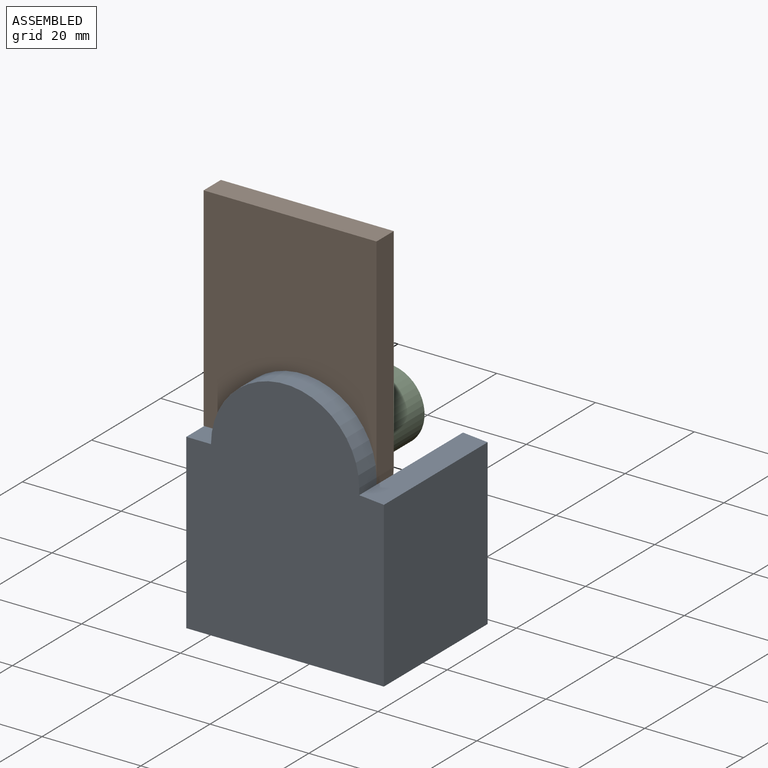
[diagram: assembled view]
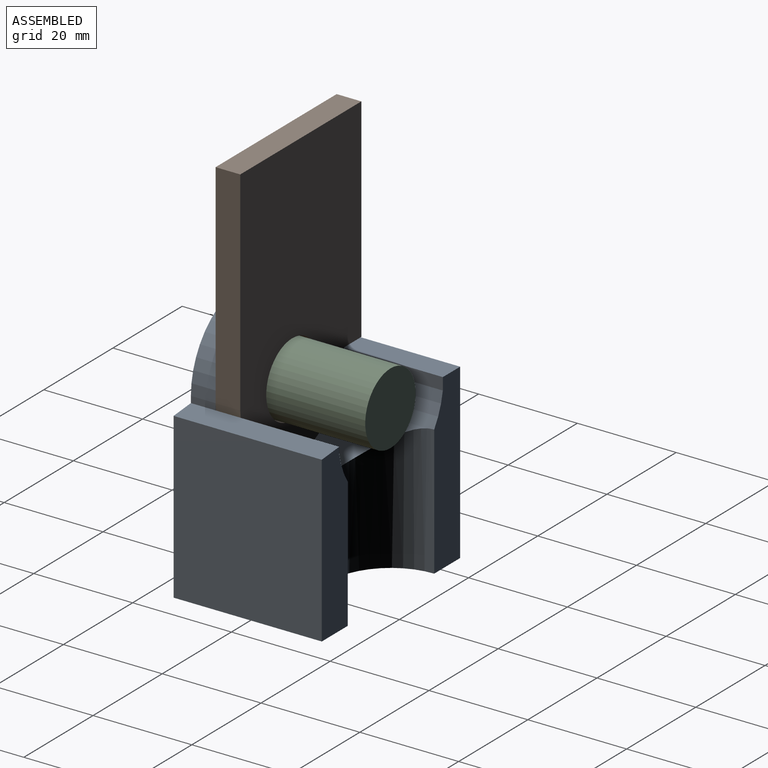
[diagram: assembled view, second angle]
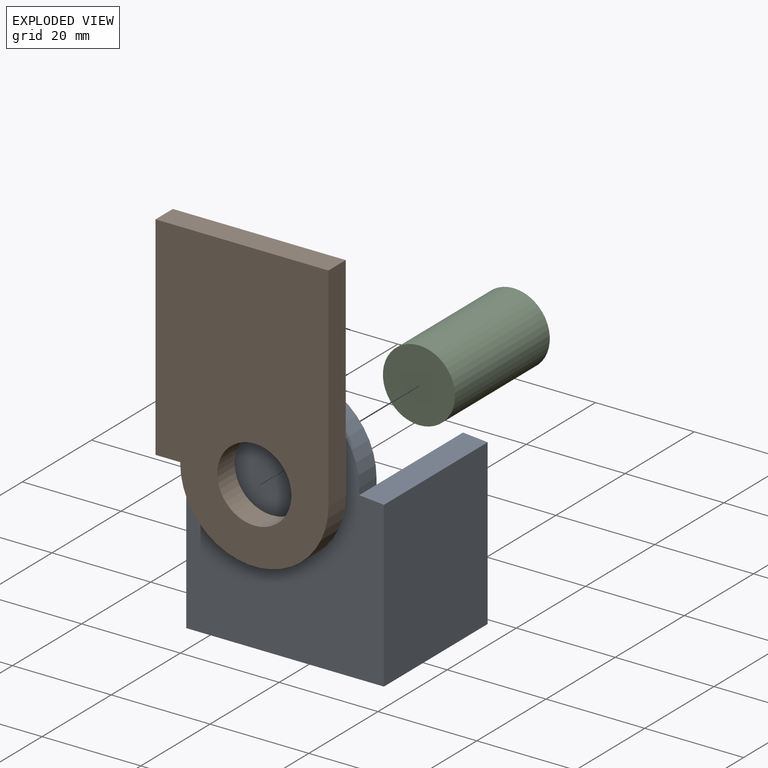
[diagram: exploded view]
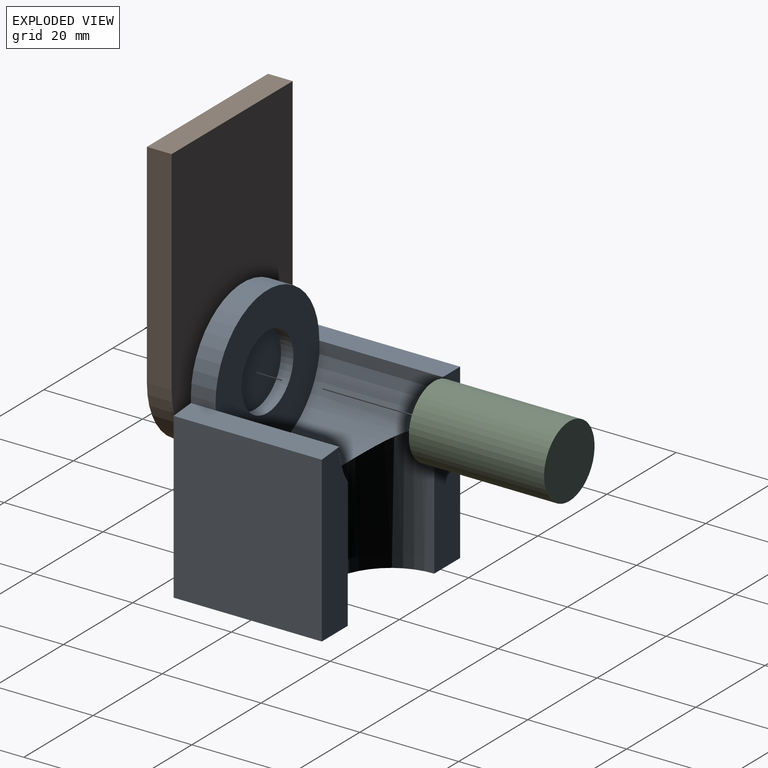
[diagram: exploded view, second angle]
ASSEMBLY  parts=3 mates=2
PART A: 17 faces, bbox 40x30x50 mm
  f0: plane 33.69x7.5mm, normal (0,1,0), area 239.3mm2, adj f1,f8,f10,f11,f12,f16
  f1: cylinder r=15.2mm len=30mm, axis (0,-1,0), area 795.6mm2, adj f0,f2,f3,f5,f10,f16
  f2: plane 25x2.46mm, normal (1,0,0), area 61.4mm2, adj f1,f3,f5,f6
  f3: plane 30.2x30mm, normal (0,1,0), area 539mm2, adj f1,f2,f4,f10,f13,f14
  f4: cylinder r=7.5mm len=15mm, axis (0,-1,0), area 117.8mm2, adj f3,f15
  f5: plane 35x7.5mm, normal (0,1,0), area 247mm2, adj f1,f2,f6,f7,f8,f16
  f6: plane 30x5mm, normal (0,0,1), area 150mm2, adj f2,f5,f7,f9,f14
  f7: plane 35x30mm, normal (-1,0,0), area 1050mm2, adj f5,f6,f8,f9
  f8: plane 40x30mm, normal (0,0,-1), area 954.6mm2, adj f0,f5,f7,f9,f11,f16
  f9: plane 50x40mm, normal (0,-1,0), area 1745.8mm2, adj f6,f7,f8,f11,f12,f13,f14
  f10: plane 25x1.15mm, normal (-1,0,0), area 28.6mm2, adj f0,f1,f3,f12
  f11: plane 33.25x30mm, normal (1,0,0), area 997.5mm2, adj f0,f8,f9,f12
  f12: plane 30x5mm, normal (0.09,0,1), area 150.6mm2, adj f0,f9,f10,f11,f13
  f13: plane 5x1.31mm, normal (1,0,0), area 6.6mm2, adj f3,f9,f12,f14
  f14: cylinder r=15mm len=30mm, axis (0,-1,0), area 235.6mm2, adj f3,f6,f9,f13
  f15: plane 15x15mm, normal (0,1,0), area 176.7mm2, adj f4
  f16: cylinder r=12.5mm len=26.35mm, axis (0,0,-1), area 897.3mm2, adj f0,f1,f5,f8
PART B: 8 faces, bbox 35x5x58.2 mm
  f0: plane 43.18x5mm, normal (1,0,0), area 215.9mm2, adj f1,f4,f6,f7
  f1: cylinder r=15mm len=30mm, axis (0,-1,0), area 236.1mm2, adj f0,f2,f6,f7
  f2: plane 5x5mm, normal (0,0,-1), area 25mm2, adj f1,f3,f6,f7
  f3: plane 43.08x5mm, normal (-1,0,0), area 215.4mm2, adj f2,f4,f6,f7
  f4: plane 35x5mm, normal (0,0,1), area 175mm2, adj f0,f3,f6,f7
  f5: cylinder r=7.5mm len=15mm, axis (0,-1,0), area 235.6mm2, adj f6,f7
  f6: plane 58.18x35mm, normal (0,1,0), area 1687.7mm2, adj f0,f1,f2,f3,f4,f5
  f7: plane 58.18x35mm, normal (0,-1,0), area 1687.7mm2, adj f0,f1,f2,f3,f4,f5
PART C: 3 faces, bbox 14.6x27.4x14.6 mm
  f0: plane 14.6x14.6mm, normal (0,-1,0), area 167.4mm2, adj f2
  f1: plane 14.6x14.6mm, normal (0,1,0), area 167.4mm2, adj f2
  f2: cylinder r=7.3mm len=27.4mm, axis (0,1,0), area 1256.8mm2, adj f0,f1
PLACE A t=(-3.1,16.14,-11.82)mm
PLACE B t=(-3.1,16.14,-11.82)mm
PLACE C t=(-3.1,16.04,-11.82)mm
MATE revolute C.f2 <-> A.f4  axis (0,-1,0) through (-3.1,-11.36,23.18)mm
MATE revolute B.f5 <-> A.f4  axis (0,1,0) through (-3.1,-8.86,23.18)mm
